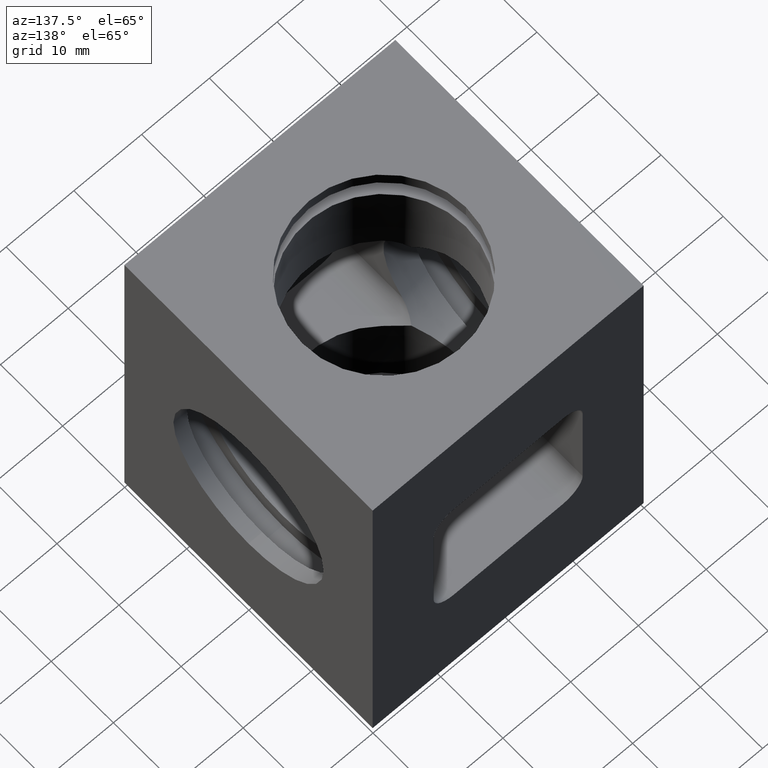
[diagram: clean part render]
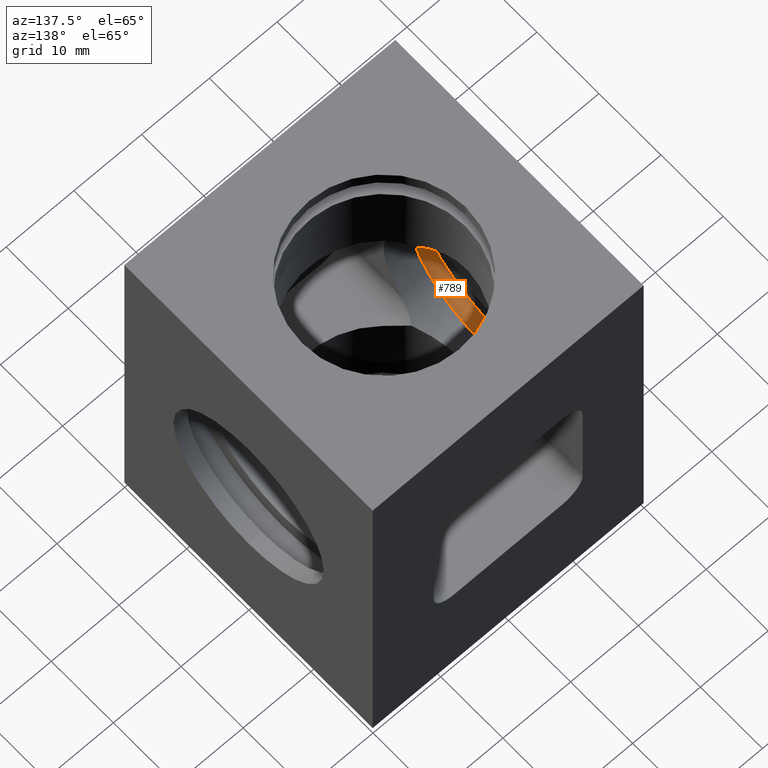
[diagram: same view with one face highlighted and labeled with its STEP entity id]
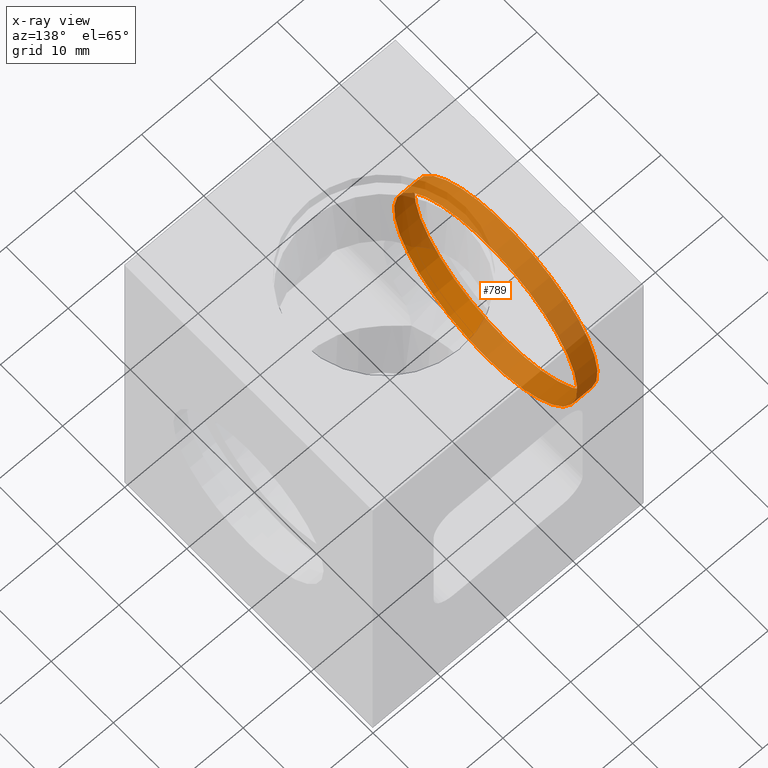
[diagram: x-ray of the same camera — body ghosted, the highlighted face saturated]
A machine part, auxiliary view. The second image highlights one B-rep face of the part: STEP entity #789.
The next image is the same camera in x-ray: the body ghosted, the highlighted face saturated — about 82% of this face is hidden behind the body in this view.
In plain terms, the highlighted cylindrical surface (bore or boss wall) has radius 14.75 mm, axis along (-1, 0, 0).
Its self-contained STEP definition (entity closure, byte-faithful):
#65=CYLINDRICAL_SURFACE('',#876,14.75);
#100=FACE_BOUND('',#252,.T.);
#144=CIRCLE('',#877,14.75);
#145=CIRCLE('',#878,14.75);
#183=FACE_OUTER_BOUND('',#251,.T.);
#251=EDGE_LOOP('',(#617));
#252=EDGE_LOOP('',(#618));
#416=VERTEX_POINT('',#1307);
#417=VERTEX_POINT('',#1309);
#496=EDGE_CURVE('',#416,#416,#144,.T.);
#497=EDGE_CURVE('',#417,#417,#145,.T.);
#617=ORIENTED_EDGE('',*,*,#496,.F.);
#618=ORIENTED_EDGE('',*,*,#497,.T.);
#789=ADVANCED_FACE('',(#183,#100),#65,.F.);
#876=AXIS2_PLACEMENT_3D('',#1306,#1049,#1050);
#877=AXIS2_PLACEMENT_3D('',#1308,#1051,#1052);
#878=AXIS2_PLACEMENT_3D('',#1310,#1053,#1054);
#1049=DIRECTION('center_axis',(-1.,0.,0.));
#1050=DIRECTION('ref_axis',(0.,0.,1.));
#1051=DIRECTION('center_axis',(-1.,0.,0.));
#1052=DIRECTION('ref_axis',(0.,0.,1.));
#1053=DIRECTION('center_axis',(-1.,0.,0.));
#1054=DIRECTION('ref_axis',(0.,0.,1.));
#1306=CARTESIAN_POINT('Origin',(-18.,29.95,0.));
#1307=CARTESIAN_POINT('',(-15.,29.95,-14.75));
#1308=CARTESIAN_POINT('Origin',(-15.,29.95,0.));
#1309=CARTESIAN_POINT('',(-18.,29.95,-14.75));
#1310=CARTESIAN_POINT('Origin',(-18.,29.95,0.));